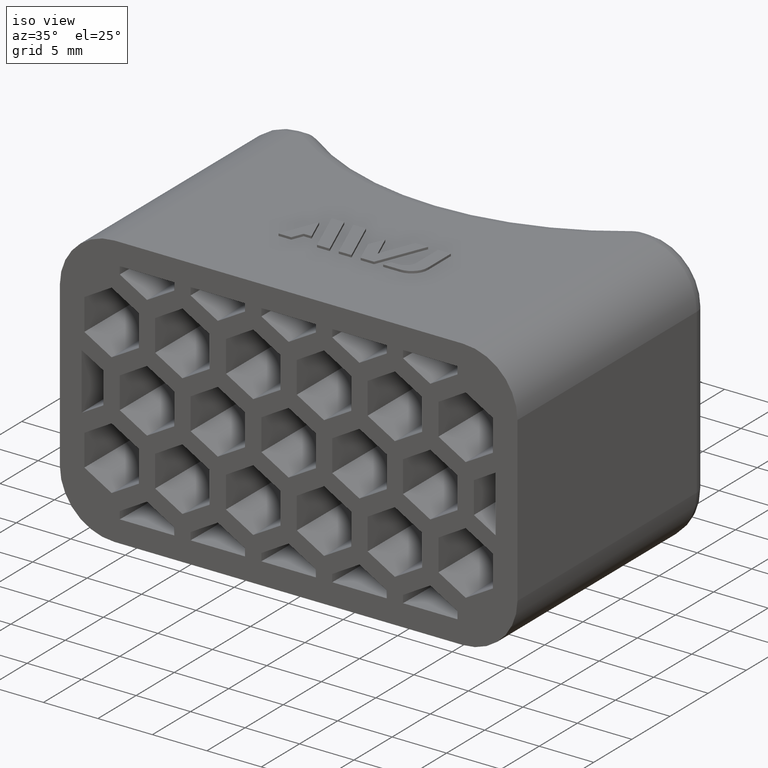
[diagram: clean part render]
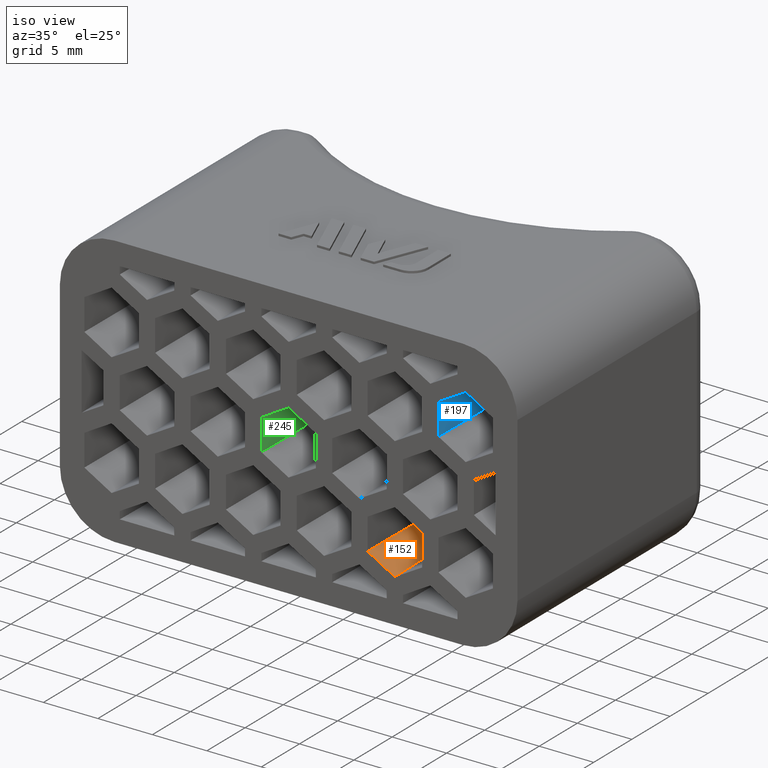
[diagram: same view with three faces highlighted in distinct colors, each labeled with its STEP entity id]
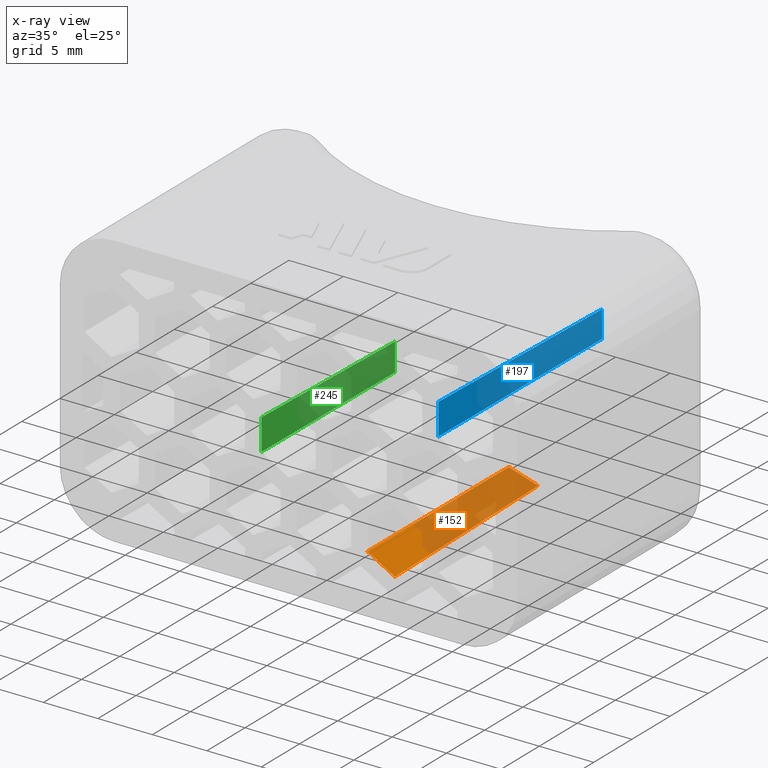
[diagram: x-ray of the same camera — body ghosted, the three highlighted faces saturated]
A machine part, iso view with three faces highlighted in distinct colors.
The next image is the same camera in x-ray (body ghosted, the three faces saturated) — at least one of them is partly hidden behind the body in this view.
Their STEP definitions:

[orange] entity #152 — the highlighted planar face has unit normal (-0.4999, 0.0175, -0.8659).
#152 = ADVANCED_FACE( '', ( #520 ), #521, .F. );
#520 = FACE_OUTER_BOUND( '', #1066, .T. );
#521 = PLANE( '', #1067 );
#1066 = EDGE_LOOP( '', ( #2166, #2167, #2168, #2169 ) );
#1067 = AXIS2_PLACEMENT_3D( '', #2170, #2171, #2172 );
#2166 = ORIENTED_EDGE( '', *, *, #3841, .T. );
#2167 = ORIENTED_EDGE( '', *, *, #3533, .F. );
#2168 = ORIENTED_EDGE( '', *, *, #3832, .F. );
#2169 = ORIENTED_EDGE( '', *, *, #3843, .F. );
#2170 = CARTESIAN_POINT( '', ( -1.56125112837913E-014, -6.93889390390723E-015, -2.88675134594813 ) );
#2171 = DIRECTION( '', ( -0.499923847578196, 0.0174524064372835, -0.865893503920754 ) );
#2172 = DIRECTION( '', ( -0.866025403784438, -9.68803173089423E-019, 0.500000000000000 ) );
#3533 = EDGE_CURVE( '', #4233, #4235, #4236, .F. );
#3832 = EDGE_CURVE( '', #4761, #4233, #4762, .T. );
#3841 = EDGE_CURVE( '', #4775, #4235, #4776, .T. );
#3843 = EDGE_CURVE( '', #4775, #4761, #4778, .F. );
#4233 = VERTEX_POINT( '', #5353 );
#4235 = VERTEX_POINT( '', #5356 );
#4236 = LINE( '', #5357, #5358 );
#4761 = VERTEX_POINT( '', #6128 );
#4762 = LINE( '', #6129, #6130 );
#4775 = VERTEX_POINT( '', #6148 );
#4776 = LINE( '', #6149, #6150 );
#4778 = ELLIPSE( '', #6153, 31.5281265841423, 27.3000000000000 );
#5353 = CARTESIAN_POINT( '', ( 9.74999999999999, -6.93889390390723E-015, -8.51591647054698 ) );
#5356 = CARTESIAN_POINT( '', ( 7.24999999999998, -6.93889390390723E-015, -7.07254079757292 ) );
#5357 = CARTESIAN_POINT( '', ( 8.49999999999998, -6.93889390390723E-015, -7.79422863405995 ) );
#5358 = VECTOR( '', #6803, 1000.00000000000 );
#6128 = CARTESIAN_POINT( '', ( 9.74999999999998, 18.8004411802870, -8.13698656843671 ) );
#6129 = CARTESIAN_POINT( '', ( 9.74999999999998, 0.113411849710691, -8.51363061242818 ) );
#6130 = VECTOR( '', #7208, 1000.00000000000 );
#6148 = CARTESIAN_POINT( '', ( 7.56539910319682, 18.0692025205228, -6.89044504044006 ) );
#6149 = CARTESIAN_POINT( '', ( 7.25149739821562, 0.0857858863196267, -7.07167627431004 ) );
#6150 = VECTOR( '', #7223, 1000.00000000000 );
#6153 = AXIS2_PLACEMENT_3D( '', #7225, #7226, #7227 );
#6803 = DIRECTION( '', ( 0.866025403784438, 0.000000000000000, -0.500000000000000 ) );
#7208 = DIRECTION( '', ( -2.50411194413244E-018, -0.999796942337605, -0.0201512801671580 ) );
#7223 = DIRECTION( '', ( -0.0174515205435363, -0.999796942337605, -0.0100756400835790 ) );
#7225 = CARTESIAN_POINT( '', ( 0.000000000000000, 44.3000000000000, -1.99386832780458 ) );
#7226 = DIRECTION( '', ( -0.499923847578196, 0.0174524064372835, -0.865893503920754 ) );
#7227 = DIRECTION( '', ( -0.865366346075250, 0.0302100515148758, 0.500228387706895 ) );

[blue] entity #197 — the highlighted planar face has unit normal (-0.9998, 0.0175, -0).
#197 = ADVANCED_FACE( '', ( #610 ), #611, .F. );
#610 = FACE_OUTER_BOUND( '', #1156, .T. );
#611 = PLANE( '', #1157 );
#1156 = EDGE_LOOP( '', ( #2486, #2487, #2488, #2489 ) );
#1157 = AXIS2_PLACEMENT_3D( '', #2490, #2491, #2492 );
#2486 = ORIENTED_EDGE( '', *, *, #3938, .T. );
#2487 = ORIENTED_EDGE( '', *, *, #3939, .T. );
#2488 = ORIENTED_EDGE( '', *, *, #3569, .T. );
#2489 = ORIENTED_EDGE( '', *, *, #3937, .F. );
#2490 = CARTESIAN_POINT( '', ( 13.7500000000000, -6.93889390390723E-015, 1.44337567297406 ) );
#2491 = DIRECTION( '', ( -0.999847695156391, 0.0174524064372835, -5.55026966140510E-017 ) );
#2492 = DIRECTION( '', ( -0.0174524064372835, -0.999847695156391, 0.000000000000000 ) );
#3569 = EDGE_CURVE( '', #4307, #4305, #4308, .T. );
#3937 = EDGE_CURVE( '', #4920, #4305, #4922, .T. );
#3938 = EDGE_CURVE( '', #4920, #4923, #4924, .T. );
#3939 = EDGE_CURVE( '', #4923, #4307, #4925, .T. );
#4305 = VERTEX_POINT( '', #5461 );
#4307 = VERTEX_POINT( '', #5464 );
#4308 = LINE( '', #5465, #5466 );
#4920 = VERTEX_POINT( '', #6363 );
#4922 = LINE( '', #6365, #6366 );
#4923 = VERTEX_POINT( '', #6367 );
#4924 = LINE( '', #6368, #6369 );
#4925 = LINE( '', #6370, #6371 );
#5461 = CARTESIAN_POINT( '', ( 13.7500000000000, -6.93889390390723E-015, 4.18578945162479 ) );
#5464 = CARTESIAN_POINT( '', ( 13.7500000000000, -6.93889390390723E-015, 7.07254079757292 ) );
#5465 = CARTESIAN_POINT( '', ( 13.7500000000000, -6.93889390390723E-015, 1.44337567297406 ) );
#5466 = VECTOR( '', #6839, 1000.00000000000 );
#6363 = CARTESIAN_POINT( '', ( 14.1153758653644, 20.9323693075338, 4.39673930584833 ) );
#6365 = CARTESIAN_POINT( '', ( 13.7495177870153, -0.0276259633910786, 4.18551104582826 ) );
#6366 = VECTOR( '', #7371, 1000.00000000000 );
#6367 = CARTESIAN_POINT( '', ( 14.1153758653644, 20.9323693075338, 6.86159094334936 ) );
#6368 = CARTESIAN_POINT( '', ( 14.1153758653644, 20.9323693075338, -10.5000000000000 ) );
#6369 = VECTOR( '', #7372, 1000.00000000000 );
#6370 = CARTESIAN_POINT( '', ( 13.7477919721227, -0.126497832369635, 7.07381560306225 ) );
#6371 = VECTOR( '', #7373, 1000.00000000000 );
#6839 = DIRECTION( '', ( 5.55111512312578E-017, 0.000000000000000, -1.00000000000000 ) );
#7371 = DIRECTION( '', ( -0.0174515205435363, -0.999796942337605, -0.0100756400835790 ) );
#7372 = DIRECTION( '', ( 0.000000000000000, 0.000000000000000, 1.00000000000000 ) );
#7373 = DIRECTION( '', ( -0.0174515205435363, -0.999796942337605, 0.0100756400835790 ) );

[green] entity #245 — the highlighted planar face has unit normal (-0.9998, 0.0175, -0).
#245 = ADVANCED_FACE( '', ( #706 ), #707, .F. );
#706 = FACE_OUTER_BOUND( '', #1252, .T. );
#707 = PLANE( '', #1253 );
#1252 = EDGE_LOOP( '', ( #2823, #2824, #2825, #2826 ) );
#1253 = AXIS2_PLACEMENT_3D( '', #2827, #2828, #2829 );
#2823 = ORIENTED_EDGE( '', *, *, #3724, .T. );
#2824 = ORIENTED_EDGE( '', *, *, #4035, .T. );
#2825 = ORIENTED_EDGE( '', *, *, #3611, .T. );
#2826 = ORIENTED_EDGE( '', *, *, #4034, .F. );
#2827 = CARTESIAN_POINT( '', ( -2.50000000000002, -6.93889390390723E-015, 1.44337567297406 ) );
#2828 = DIRECTION( '', ( -0.999847695156391, 0.0174524064372835, -1.11005393228102E-016 ) );
#2829 = DIRECTION( '', ( -0.0174524064372835, -0.999847695156391, 0.000000000000000 ) );
#3611 = EDGE_CURVE( '', #4391, #4389, #4392, .T. );
#3724 = EDGE_CURVE( '', #4593, #4591, #4594, .T. );
#4034 = EDGE_CURVE( '', #4593, #4389, #5067, .T. );
#4035 = EDGE_CURVE( '', #4591, #4391, #5068, .T. );
#4389 = VERTEX_POINT( '', #5587 );
#4391 = VERTEX_POINT( '', #5590 );
#4392 = LINE( '', #5591, #5592 );
#4591 = VERTEX_POINT( '', #5874 );
#4593 = VERTEX_POINT( '', #5876 );
#4594 = LINE( '', #5877, #5878 );
#5067 = LINE( '', #6582, #6583 );
#5068 = LINE( '', #6584, #6585 );
#5587 = CARTESIAN_POINT( '', ( -2.50000000000002, -6.93889390390723E-015, -1.44337567297407 ) );
#5590 = CARTESIAN_POINT( '', ( -2.50000000000002, -6.93889390390723E-015, 1.44337567297406 ) );
#5591 = CARTESIAN_POINT( '', ( -2.50000000000002, -6.93889390390723E-015, 1.44337567297406 ) );
#5592 = VECTOR( '', #6881, 1000.00000000000 );
#5874 = CARTESIAN_POINT( '', ( -2.20171166066547, 17.0889275153792, 1.27115881996313 ) );
#5876 = CARTESIAN_POINT( '', ( -2.20171166066545, 17.0889275153791, -1.27115881996315 ) );
#5877 = CARTESIAN_POINT( '', ( -2.20171166066547, 17.0889275153792, -10.5000000000000 ) );
#5878 = VECTOR( '', #7052, 1000.00000000000 );
#6582 = CARTESIAN_POINT( '', ( -2.49949240738455, 0.0290799614642775, -1.44308261424089 ) );
#6583 = VECTOR( '', #7518, 1000.00000000000 );
#6584 = CARTESIAN_POINT( '', ( -2.49923861107681, 0.0436199421964198, 1.44293608487429 ) );
#6585 = VECTOR( '', #7519, 1000.00000000000 );
#6881 = DIRECTION( '', ( 1.11022302462516E-016, 0.000000000000000, -1.00000000000000 ) );
#7052 = DIRECTION( '', ( 0.000000000000000, 0.000000000000000, 1.00000000000000 ) );
#7518 = DIRECTION( '', ( -0.0174515205435363, -0.999796942337605, -0.0100756400835790 ) );
#7519 = DIRECTION( '', ( -0.0174515205435363, -0.999796942337605, 0.0100756400835790 ) );